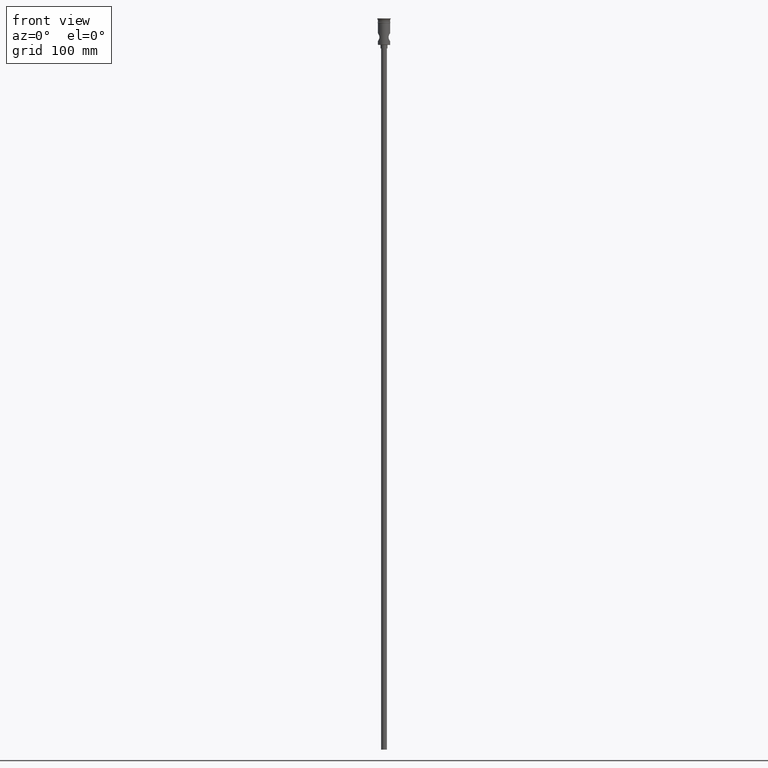
[diagram: clean part render]
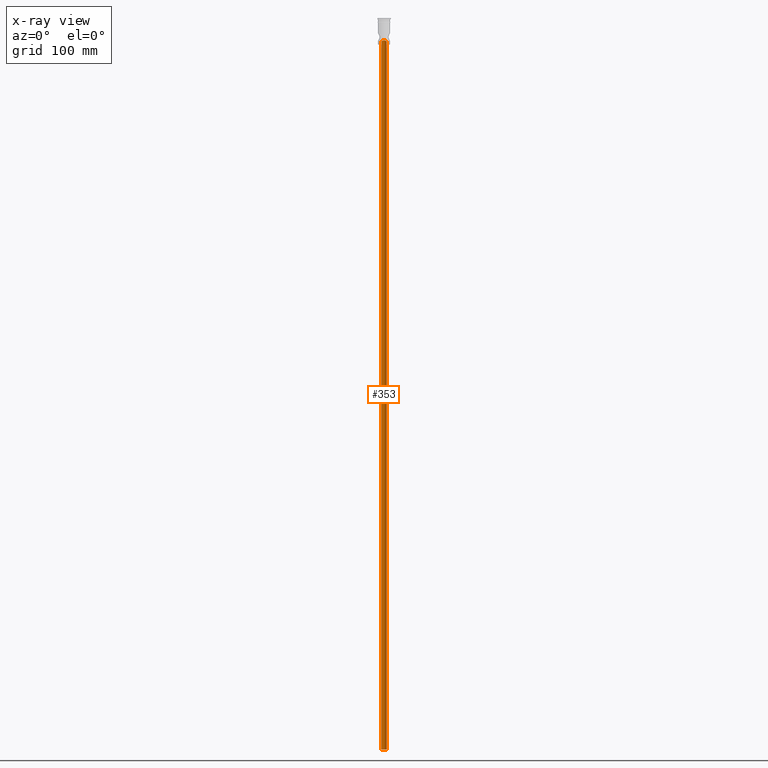
[diagram: x-ray — body ghosted, one internal face saturated and labeled with its STEP entity id]
A machine part, front view, then the same camera in x-ray: the body is ghosted and one INTERNAL B-rep face — a face not visible from any outside direction — is saturated and labeled: STEP entity #353.
In plain terms, the highlighted cylindrical surface (edge-blend (fillet) strip) has radius 2.25 mm, axis along (-0, -0, -1).
Its self-contained STEP definition (entity closure, byte-faithful):
#16 = CARTESIAN_POINT ( 'NONE',  ( 0.7394799681105336253, 2.130006936881565061, -18.77813085036313723 ) ) ;
#22 = EDGE_CURVE ( 'NONE', #787, #1463, #1090, .T. ) ;
#146 = CARTESIAN_POINT ( 'NONE',  ( 1.137018291772383005, 1.946832527748922681, -18.91011232143838683 ) ) ;
#168 = EDGE_CURVE ( 'NONE', #1463, #927, #746, .T. ) ;
#204 = DIRECTION ( 'NONE',  ( -1.000000000000000000, 0.000000000000000000, 0.000000000000000000 ) ) ;
#205 = CARTESIAN_POINT ( 'NONE',  ( 0.000000000000000000, 0.000000000000000000, -622.4999999999998863 ) ) ;
#242 = CARTESIAN_POINT ( 'NONE',  ( -2.013643463065571293, 1.014519689062937324, -19.35264097590579624 ) ) ;
#250 = CARTESIAN_POINT ( 'NONE',  ( 2.173783163195007084, 0.6000929025867463018, -19.45141731343486313 ) ) ;
#256 = CARTESIAN_POINT ( 'NONE',  ( -1.374236491424306372, 1.787287347298053497, -19.01072979112705497 ) ) ;
#263 = CARTESIAN_POINT ( 'NONE',  ( -1.010948936431294465, 2.015446760058331677, -18.86234178184922428 ) ) ;
#266 = VECTOR ( 'NONE', #638, 1000.000000000000000 ) ;
#274 = CARTESIAN_POINT ( 'NONE',  ( 1.008205844767431580, 2.016750145401540628, -18.86140864329544797 ) ) ;
#300 = DIRECTION ( 'NONE',  ( -0.000000000000000000, -0.000000000000000000, -1.000000000000000000 ) ) ;
#332 = DIRECTION ( 'NONE',  ( 0.000000000000000000, 0.000000000000000000, -1.000000000000000000 ) ) ;
#336 = ORIENTED_EDGE ( 'NONE', *, *, #22, .T. ) ;
#353 = ADVANCED_FACE ( 'NONE', ( #1404 ), #642, .F. ) ;
#357 = CARTESIAN_POINT ( 'NONE',  ( 1.955634544950294096, 1.151442147577716124, -19.31717052018207426 ) ) ;
#363 = CARTESIAN_POINT ( 'NONE',  ( -2.234060880844048302, 0.3071571285989715405, -19.48969469876804794 ) ) ;
#380 = CARTESIAN_POINT ( 'NONE',  ( 0.3017550044953464794, 2.234820444347879409, -18.69390107512714394 ) ) ;
#386 = CARTESIAN_POINT ( 'NONE',  ( 2.234602344594331491, 0.3033102270919886823, -19.49004238790224264 ) ) ;
#473 = CARTESIAN_POINT ( 'NONE',  ( 1.789075748201162108, 1.394191445469598722, -19.21833826051311434 ) ) ;
#482 = EDGE_CURVE ( 'NONE', #684, #927, #962, .T. ) ;
#527 = ORIENTED_EDGE ( 'NONE', *, *, #482, .F. ) ;
#579 = CARTESIAN_POINT ( 'NONE',  ( -2.172856605862467205, 0.6033802211928143144, -19.45083278368169033 ) ) ;
#611 = CARTESIAN_POINT ( 'NONE',  ( -1.688509612554014439, 1.493929566933212660, -19.16717237916633465 ) ) ;
#621 = ORIENTED_EDGE ( 'NONE', *, *, #1445, .T. ) ;
#638 = DIRECTION ( 'NONE',  ( -0.000000000000000000, -0.000000000000000000, -1.000000000000000000 ) ) ;
#642 = CYLINDRICAL_SURFACE ( 'NONE', #1361, 2.250000000000000444 ) ;
#664 = DIRECTION ( 'NONE',  ( -0.000000000000000000, -0.000000000000000000, -1.000000000000000000 ) ) ;
#682 = DIRECTION ( 'NONE',  ( -1.000000000000000000, 0.000000000000000000, 0.000000000000000000 ) ) ;
#684 = VERTEX_POINT ( 'NONE', #1408 ) ;
#698 = CARTESIAN_POINT ( 'NONE',  ( -2.250000000000000444, 0.000000000000000000, -19.50000000000000000 ) ) ;
#711 = B_SPLINE_CURVE_WITH_KNOTS ( 'NONE', 3,
 ( #1399, #717, #386, #250, #1375, #357, #473, #1166, #957, #146, #274, #16, #838, #380, #1182, #831, #815, #1152, #845, #263, #731, #256, #1035, #611, #1382, #1257, #242, #1062, #579, #363, #1280, #698 ),
 .UNSPECIFIED., .F., .F.,
 ( 4, 2, 2, 2, 2, 2, 2, 2, 2, 2, 2, 2, 2, 2, 2, 4 ),
 ( 0.007250279371620002231, 0.007702898212976278663, 0.008155517054332555096, 0.009060754737045109697, 0.009513373578401387864, 0.009965992419757666032, 0.01041861126111394246, 0.01087123010247022063, 0.01132384894382649880, 0.01177646778518277697, 0.01222908662653905687, 0.01268170546789533504, 0.01313432430925161321, 0.01358694315060789137, 0.01403956199196416954, 0.01449218083332044944 ),
 .UNSPECIFIED. ) ;
#717 = CARTESIAN_POINT ( 'NONE',  ( 2.250000000000000000, 0.1511344444814126664, -19.50000000000000355 ) ) ;
#730 = CARTESIAN_POINT ( 'NONE',  ( 0.000000000000000000, 0.000000000000000000, 0.001000000000028755665 ) ) ;
#731 = CARTESIAN_POINT ( 'NONE',  ( -1.137071909613136977, 1.946789528568158678, -18.91013753428407895 ) ) ;
#746 = CIRCLE ( 'NONE', #1431, 2.250000000000000444 ) ;
#787 = VERTEX_POINT ( 'NONE', #1199 ) ;
#815 = CARTESIAN_POINT ( 'NONE',  ( -0.3040462924481899809, 2.234400780072425263, -18.69424399713910390 ) ) ;
#823 = CARTESIAN_POINT ( 'NONE',  ( -2.250000000000000444, 0.000000000000000000, -622.4999999999998863 ) ) ;
#831 = CARTESIAN_POINT ( 'NONE',  ( -0.1500169204542479151, 2.250061825955684824, -18.68089943599752090 ) ) ;
#838 = CARTESIAN_POINT ( 'NONE',  ( 0.5987953167195502191, 2.174148723038048292, -18.74310093710721148 ) ) ;
#845 = CARTESIAN_POINT ( 'NONE',  ( -0.7405438485911071123, 2.129703782927348854, -18.77837864873280793 ) ) ;
#877 = EDGE_LOOP ( 'NONE', ( #527, #621, #336, #1237 ) ) ;
#927 = VERTEX_POINT ( 'NONE', #1353 ) ;
#957 = CARTESIAN_POINT ( 'NONE',  ( 1.374440444067672074, 1.787143237862401479, -19.01081876934686932 ) ) ;
#962 = LINE ( 'NONE', #1317, #1216 ) ;
#1035 = CARTESIAN_POINT ( 'NONE',  ( -1.486101087930515652, 1.695403733361556586, -19.06405166588539757 ) ) ;
#1062 = CARTESIAN_POINT ( 'NONE',  ( -2.128305117303373795, 0.7445317478142488010, -19.42273635989037217 ) ) ;
#1090 = LINE ( 'NONE', #1298, #266 ) ;
#1152 = CARTESIAN_POINT ( 'NONE',  ( -0.5978997219343202829, 2.174283081029379616, -18.74298936302307084 ) ) ;
#1166 = CARTESIAN_POINT ( 'NONE',  ( 1.484258646410845373, 1.697053836921559533, -19.06314805567991755 ) ) ;
#1182 = CARTESIAN_POINT ( 'NONE',  ( 0.1518657931922163529, 2.249937794229810883, -18.68100353014522952 ) ) ;
#1199 = CARTESIAN_POINT ( 'NONE',  ( -2.250000000000000444, 0.000000000000000000, -19.50000000000000000 ) ) ;
#1216 = VECTOR ( 'NONE', #300, 1000.000000000000000 ) ;
#1237 = ORIENTED_EDGE ( 'NONE', *, *, #168, .T. ) ;
#1257 = CARTESIAN_POINT ( 'NONE',  ( -1.942436584114296760, 1.144722481710678030, -19.30999928086847461 ) ) ;
#1280 = CARTESIAN_POINT ( 'NONE',  ( -2.250000000000000444, 0.1533011007607881504, -19.49999999999999289 ) ) ;
#1298 = CARTESIAN_POINT ( 'NONE',  ( -2.250000000000000444, 0.000000000000000000, 0.001000000000028755665 ) ) ;
#1317 = CARTESIAN_POINT ( 'NONE',  ( 2.250000000000000444, 2.755455298081544778E-16, 0.001000000000028755665 ) ) ;
#1353 = CARTESIAN_POINT ( 'NONE',  ( 2.250000000000000444, 2.755455298081544778E-16, -622.4999999999998863 ) ) ;
#1361 = AXIS2_PLACEMENT_3D ( 'NONE', #730, #664, #204 ) ;
#1375 = CARTESIAN_POINT ( 'NONE',  ( 2.129222258077476226, 0.7422054627007588223, -19.42330116567810094 ) ) ;
#1382 = CARTESIAN_POINT ( 'NONE',  ( -1.779756883055182648, 1.384165770656526240, -19.21723016255077710 ) ) ;
#1399 = CARTESIAN_POINT ( 'NONE',  ( 2.250000000000000444, 1.892513914771209576E-20, -19.50000000000000000 ) ) ;
#1404 = FACE_OUTER_BOUND ( 'NONE', #877, .T. ) ;
#1408 = CARTESIAN_POINT ( 'NONE',  ( 2.250000000000000444, 1.892513914771209576E-20, -19.50000000000000000 ) ) ;
#1431 = AXIS2_PLACEMENT_3D ( 'NONE', #205, #332, #682 ) ;
#1445 = EDGE_CURVE ( 'NONE', #684, #787, #711, .T. ) ;
#1463 = VERTEX_POINT ( 'NONE', #823 ) ;